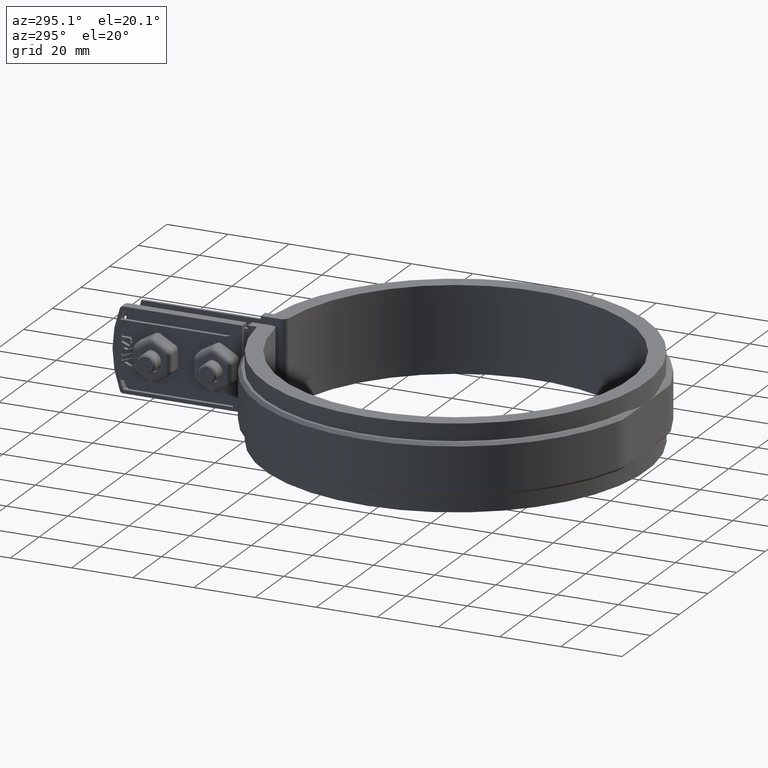
[diagram: clean part render]
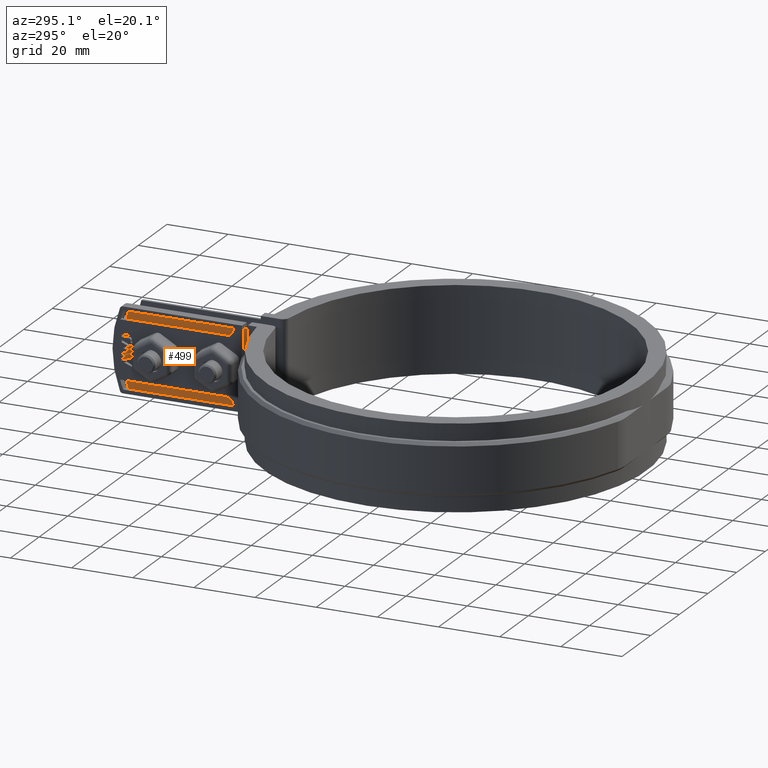
[diagram: same view with one face highlighted and labeled with its STEP entity id]
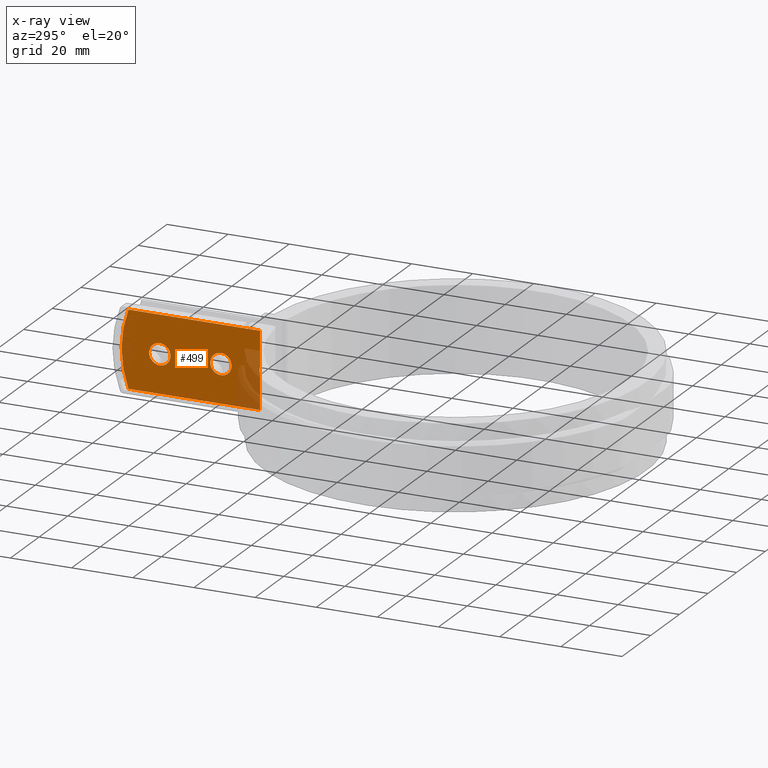
[diagram: x-ray of the same camera — body ghosted, the highlighted face saturated]
A machine part, auxiliary view. The second image highlights one B-rep face of the part: STEP entity #499.
The next image is the same camera in x-ray: the body ghosted, the highlighted face saturated — about 12% of this face is hidden behind the body in this view.
In plain terms, the highlighted planar face has unit normal (-1, 0, 0).
Its self-contained STEP definition (entity closure, byte-faithful):
#499 = ADVANCED_FACE( '', ( #905, #906, #907 ), #908, .T. );
#905 = FACE_OUTER_BOUND( '', #1944, .T. );
#906 = FACE_BOUND( '', #1945, .T. );
#907 = FACE_BOUND( '', #1946, .T. );
#908 = PLANE( '', #1947 );
#1944 = EDGE_LOOP( '', ( #3774, #3775, #3776, #3777, #3778, #3779 ) );
#1945 = EDGE_LOOP( '', ( #3780 ) );
#1946 = EDGE_LOOP( '', ( #3781 ) );
#1947 = AXIS2_PLACEMENT_3D( '', #3782, #3783, #3784 );
#3774 = ORIENTED_EDGE( '', *, *, #7077, .F. );
#3775 = ORIENTED_EDGE( '', *, *, #7141, .T. );
#3776 = ORIENTED_EDGE( '', *, *, #7134, .F. );
#3777 = ORIENTED_EDGE( '', *, *, #7041, .T. );
#3778 = ORIENTED_EDGE( '', *, *, #7049, .T. );
#3779 = ORIENTED_EDGE( '', *, *, #7166, .T. );
#3780 = ORIENTED_EDGE( '', *, *, #7140, .T. );
#3781 = ORIENTED_EDGE( '', *, *, #7167, .T. );
#3782 = CARTESIAN_POINT( '', ( -4.99999999999999, 106.901303715507, -12.5000000000000 ) );
#3783 = DIRECTION( '', ( -1.00000000000000, 6.13499765894237E-017, 0.000000000000000 ) );
#3784 = DIRECTION( '', ( 0.000000000000000, 0.000000000000000, 1.00000000000000 ) );
#7041 = EDGE_CURVE( '', #7992, #7989, #7993, .T. );
#7049 = EDGE_CURVE( '', #7989, #8006, #8007, .T. );
#7077 = EDGE_CURVE( '', #8056, #8047, #8058, .T. );
#7134 = EDGE_CURVE( '', #7992, #8154, #8155, .F. );
#7140 = EDGE_CURVE( '', #8164, #8164, #8165, .F. );
#7141 = EDGE_CURVE( '', #8056, #8154, #8166, .T. );
#7166 = EDGE_CURVE( '', #8006, #8047, #8200, .T. );
#7167 = EDGE_CURVE( '', #8201, #8201, #8202, .F. );
#7989 = VERTEX_POINT( '', #9562 );
#7992 = VERTEX_POINT( '', #9566 );
#7993 = CIRCLE( '', #9567, 36.0000000000000 );
#8006 = VERTEX_POINT( '', #9584 );
#8007 = LINE( '', #9585, #9586 );
#8047 = VERTEX_POINT( '', #9807 );
#8056 = VERTEX_POINT( '', #9959 );
#8058 = B_SPLINE_CURVE_WITH_KNOTS( '', 3, ( #9976, #9977, #9978, #9979, #9980, #9981, #9982, #9983 ), .UNSPECIFIED., .F., .F., ( 4, 2, 2, 4 ), ( 4.11996825544492E-018, 0.00150022658167003, 0.00225033987250504, 0.00300045316334006 ), .UNSPECIFIED. );
#8154 = VERTEX_POINT( '', #10551 );
#8155 = LINE( '', #10552, #10553 );
#8164 = VERTEX_POINT( '', #10602 );
#8165 = CIRCLE( '', #10603, 3.50000000000000 );
#8166 = LINE( '', #10604, #10605 );
#8200 = LINE( '', #10871, #10872 );
#8201 = VERTEX_POINT( '', #10873 );
#8202 = CIRCLE( '', #10874, 3.50000000000000 );
#9562 = CARTESIAN_POINT( '', ( -4.99999999999998, 104.661487364297, -12.5000000000000 ) );
#9566 = CARTESIAN_POINT( '', ( -4.99999999999998, 104.661487364297, 12.5000000000000 ) );
#9567 = AXIS2_PLACEMENT_3D( '', #13887, #13888, #13889 );
#9584 = CARTESIAN_POINT( '', ( -5.00000000000000, 61.6035713250458, -12.5000000000000 ) );
#9585 = CARTESIAN_POINT( '', ( -4.99999999999999, 106.901303715507, -12.5000000000000 ) );
#9586 = VECTOR( '', #13903, 1000.00000000000 );
#9807 = CARTESIAN_POINT( '', ( -5.00000000000000, 61.6035713250458, -1.49472198519354 ) );
#9959 = CARTESIAN_POINT( '', ( -5.00000000000000, 61.6035713250458, 1.49472198519496 ) );
#9976 = CARTESIAN_POINT( '', ( -5.00000000000000, 61.6035713250458, 1.49472198519495 ) );
#9977 = CARTESIAN_POINT( '', ( -5.00000000000000, 61.7313907547541, 1.00388261558437 ) );
#9978 = CARTESIAN_POINT( '', ( -4.99999999999999, 61.7965111292352, 0.507584838703709 ) );
#9979 = CARTESIAN_POINT( '', ( -4.99999999999999, 61.7972551695540, -0.245300853509248 ) );
#9980 = CARTESIAN_POINT( '', ( -4.99999999999999, 61.7808408024274, -0.499093984818924 ) );
#9981 = CARTESIAN_POINT( '', ( -4.99999999999999, 61.7158527910326, -1.00096895216962 ) );
#9982 = CARTESIAN_POINT( '', ( -5.00000000000000, 61.6675116061577, -1.24918492290719 ) );
#9983 = CARTESIAN_POINT( '', ( -5.00000000000000, 61.6035713250458, -1.49472198519354 ) );
#10551 = CARTESIAN_POINT( '', ( -5.00000000000000, 61.6035713250458, 12.5000000000000 ) );
#10552 = CARTESIAN_POINT( '', ( -4.99999999999999, 61.6035713250458, 12.5000000000000 ) );
#10553 = VECTOR( '', #14002, 1000.00000000000 );
#10602 = CARTESIAN_POINT( '', ( -4.99999999999999, 90.9013037155070, -1.73472347597681E-015 ) );
#10603 = AXIS2_PLACEMENT_3D( '', #14012, #14013, #14014 );
#10604 = CARTESIAN_POINT( '', ( -5.00000000000000, 61.6035713250458, -12.5000000000000 ) );
#10605 = VECTOR( '', #14015, 1000.00000000000 );
#10871 = CARTESIAN_POINT( '', ( -5.00000000000000, 61.6035713250458, -12.5000000000000 ) );
#10872 = VECTOR( '', #14032, 1000.00000000000 );
#10873 = CARTESIAN_POINT( '', ( -4.99999999999999, 70.9013037155070, -1.73472347597681E-015 ) );
#10874 = AXIS2_PLACEMENT_3D( '', #14033, #14034, #14035 );
#13887 = CARTESIAN_POINT( '', ( -4.99999999999998, 70.9013037155070, -6.48613887045513E-031 ) );
#13888 = DIRECTION( '', ( -1.00000000000000, 6.13499765894237E-017, 0.000000000000000 ) );
#13889 = DIRECTION( '', ( -6.13499765894237E-017, -1.00000000000000, 0.000000000000000 ) );
#13903 = DIRECTION( '', ( -6.13499765894237E-017, -1.00000000000000, 0.000000000000000 ) );
#14002 = DIRECTION( '', ( 6.13499765894237E-017, 1.00000000000000, 0.000000000000000 ) );
#14012 = CARTESIAN_POINT( '', ( -4.99999999999999, 94.4013037155070, -1.73472347597681E-015 ) );
#14013 = DIRECTION( '', ( -1.00000000000000, 6.13499765894237E-017, 0.000000000000000 ) );
#14014 = DIRECTION( '', ( -6.13499765894237E-017, -1.00000000000000, 0.000000000000000 ) );
#14015 = DIRECTION( '', ( 0.000000000000000, 0.000000000000000, 1.00000000000000 ) );
#14032 = DIRECTION( '', ( 0.000000000000000, 0.000000000000000, 1.00000000000000 ) );
#14033 = CARTESIAN_POINT( '', ( -4.99999999999999, 74.4013037155070, -1.73472347597681E-015 ) );
#14034 = DIRECTION( '', ( -1.00000000000000, 6.13499765894237E-017, 0.000000000000000 ) );
#14035 = DIRECTION( '', ( -6.13499765894237E-017, -1.00000000000000, 0.000000000000000 ) );